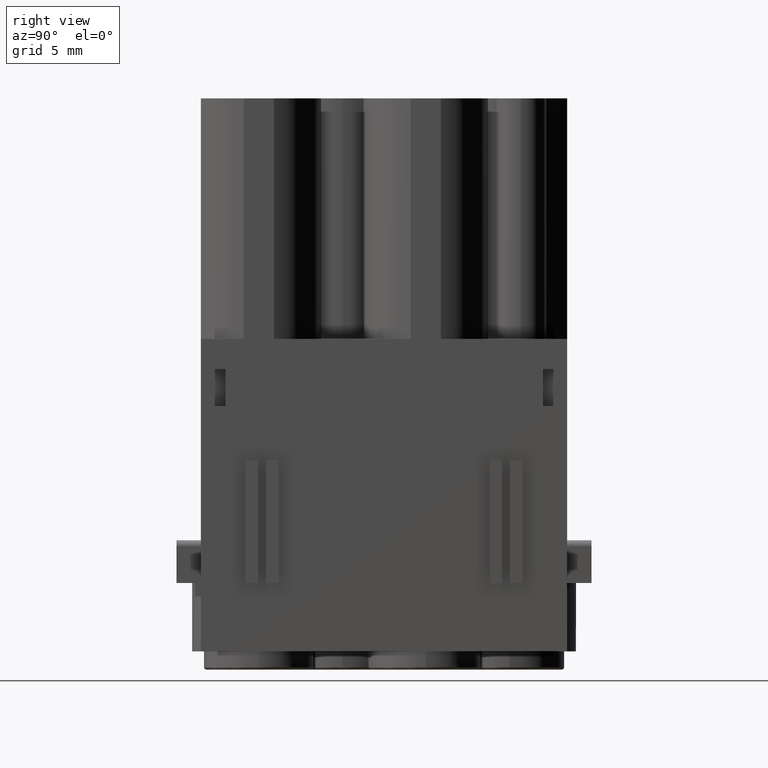
[diagram: clean part render]
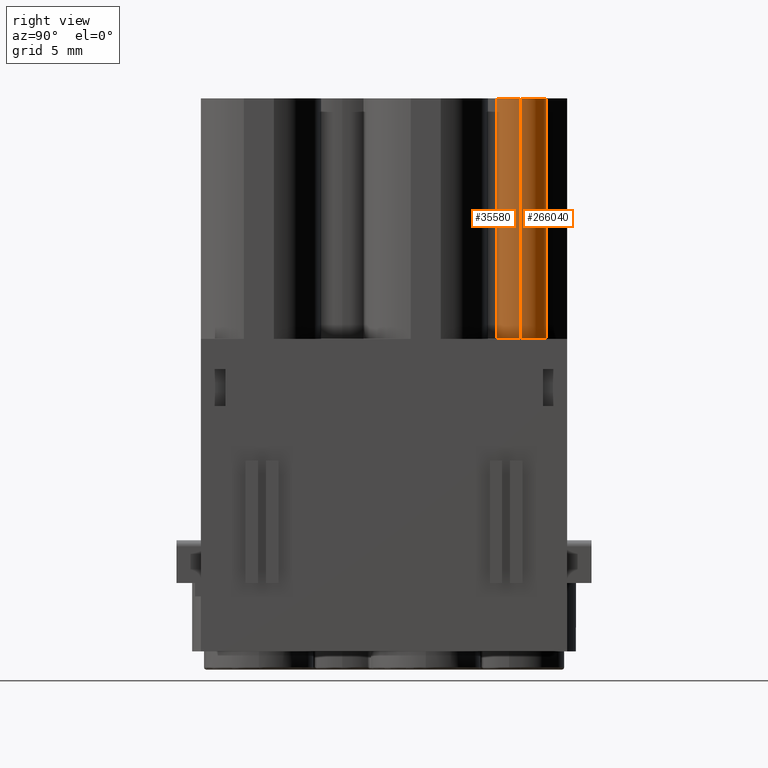
[diagram: same view with one multi-face feature highlighted, each face labeled with its STEP entity id]
A machine part, right view. The highlighted faces form ONE feature: a constant-radius fillet chain: 2 tangent blend faces with common blend radius 2.1 mm. The faces share edges in the B-rep.
Their STEP definitions:
[1] entity #266040 (Cylinder):
#35170=CARTESIAN_POINT('',(50.5934374313278,39.0571830000003,
-5.79766569867205));
#35180=DIRECTION('',(-4.24227485744583E-30,-1.,1.24773551709422E-14));
#35190=DIRECTION('',(1.,1.86986637132178E-30,4.89858719658941E-16));
#35200=AXIS2_PLACEMENT_3D('',#35170,#35180,#35190);
#35210=CYLINDRICAL_SURFACE('',#35200,2.1);
#35220=CARTESIAN_POINT('',(50.5934374313278,38.5571830000003,
-5.79766569867204));
#35230=DIRECTION('',(-4.24227485744583E-30,-1.,1.24773551709422E-14));
#35240=DIRECTION('',(1.,1.86986637132178E-30,4.89858719658941E-16));
#35250=AXIS2_PLACEMENT_3D('',#35220,#35230,#35240);
#35260=CIRCLE('',#35250,2.1);
#35290=CARTESIAN_POINT('',(52.6934374313278,38.5571830000003,
-5.79766569867204));
#35300=VERTEX_POINT('',#35290);
#35330=CARTESIAN_POINT('',(52.6934374313278,39.0571830000003,
-5.79766569867205));
#35340=DIRECTION('',(-4.24227485744583E-30,-1.,1.24773551709422E-14));
#35350=VECTOR('',#35340,1.);
#35360=LINE('',#35330,#35350);
#35370=CARTESIAN_POINT('',(52.6934374313278,58.2571830000003,
-5.79766569867229));
#35380=VERTEX_POINT('',#35370);
#35390=EDGE_CURVE('',#35380,#35300,#35360,.T.);
#35410=CARTESIAN_POINT('',(50.5934374313278,58.2571830000003,
-5.79766569867228));
#35420=DIRECTION('',(-4.24227485744583E-30,-1.,1.24773551709422E-14));
#35430=DIRECTION('',(1.,1.86986637132178E-30,4.89858719658941E-16));
#35440=AXIS2_PLACEMENT_3D('',#35410,#35420,#35430);
#35450=CIRCLE('',#35440,2.1);
#93650=CARTESIAN_POINT('',(50.3907773217341,38.5571830000003,
-3.70746741143241));
#93660=VERTEX_POINT('',#93650);
#93690=EDGE_CURVE('',#35300,#93660,#35260,.T.);
#99490=CARTESIAN_POINT('',(50.3907773217341,58.2571830000003,
-3.70746741143266));
#99500=VERTEX_POINT('',#99490);
#99530=CARTESIAN_POINT('',(50.3907773217341,39.0571830000003,
-3.70746741143242));
#99540=DIRECTION('',(4.24227485744583E-30,1.,-1.24773551709422E-14));
#99550=VECTOR('',#99540,1.);
#99560=LINE('',#99530,#99550);
#99570=EDGE_CURVE('',#93660,#99500,#99560,.T.);
#100400=EDGE_CURVE('',#35380,#99500,#35450,.T.);
#265980=ORIENTED_EDGE('',*,*,#93690,.F.);
#265990=ORIENTED_EDGE('',*,*,#99570,.F.);
#266000=ORIENTED_EDGE('',*,*,#100400,.T.);
#266010=ORIENTED_EDGE('',*,*,#35390,.F.);
#266020=EDGE_LOOP('',(#266010,#266000,#265990,#265980));
#266030=FACE_OUTER_BOUND('',#266020,.T.);
#266040=ADVANCED_FACE('',(#266030),#35210,.T.);
[2] entity #35580 (Cylinder):
#35170=CARTESIAN_POINT('',(50.5934374313278,39.0571830000003,
-5.79766569867205));
#35180=DIRECTION('',(-4.24227485744583E-30,-1.,1.24773551709422E-14));
#35190=DIRECTION('',(1.,1.86986637132178E-30,4.89858719658941E-16));
#35200=AXIS2_PLACEMENT_3D('',#35170,#35180,#35190);
#35210=CYLINDRICAL_SURFACE('',#35200,2.1);
#35220=CARTESIAN_POINT('',(50.5934374313278,38.5571830000003,
-5.79766569867204));
#35230=DIRECTION('',(-4.24227485744583E-30,-1.,1.24773551709422E-14));
#35240=DIRECTION('',(1.,1.86986637132178E-30,4.89858719658941E-16));
#35250=AXIS2_PLACEMENT_3D('',#35220,#35230,#35240);
#35260=CIRCLE('',#35250,2.1);
#35270=CARTESIAN_POINT('',(51.293120962728,38.5571830000002,
-7.77767654608864));
#35280=VERTEX_POINT('',#35270);
#35290=CARTESIAN_POINT('',(52.6934374313278,38.5571830000003,
-5.79766569867204));
#35300=VERTEX_POINT('',#35290);
#35310=EDGE_CURVE('',#35280,#35300,#35260,.T.);
#35320=ORIENTED_EDGE('',*,*,#35310,.F.);
#35330=CARTESIAN_POINT('',(52.6934374313278,39.0571830000003,
-5.79766569867205));
#35340=DIRECTION('',(-4.24227485744583E-30,-1.,1.24773551709422E-14));
#35350=VECTOR('',#35340,1.);
#35360=LINE('',#35330,#35350);
#35370=CARTESIAN_POINT('',(52.6934374313278,58.2571830000003,
-5.79766569867229));
#35380=VERTEX_POINT('',#35370);
#35390=EDGE_CURVE('',#35380,#35300,#35360,.T.);
#35400=ORIENTED_EDGE('',*,*,#35390,.T.);
#35410=CARTESIAN_POINT('',(50.5934374313278,58.2571830000003,
-5.79766569867228));
#35420=DIRECTION('',(-4.24227485744583E-30,-1.,1.24773551709422E-14));
#35430=DIRECTION('',(1.,1.86986637132178E-30,4.89858719658941E-16));
#35440=AXIS2_PLACEMENT_3D('',#35410,#35420,#35430);
#35450=CIRCLE('',#35440,2.1);
#35460=CARTESIAN_POINT('',(51.293120962728,58.2571830000002,
-7.77767654608889));
#35470=VERTEX_POINT('',#35460);
#35480=EDGE_CURVE('',#35470,#35380,#35450,.T.);
#35490=ORIENTED_EDGE('',*,*,#35480,.T.);
#35500=CARTESIAN_POINT('',(51.2931209627279,39.0571830000003,
-7.77767654608865));
#35510=DIRECTION('',(4.24227485744583E-30,1.,-1.24773551709422E-14));
#35520=VECTOR('',#35510,1.);
#35530=LINE('',#35500,#35520);
#35540=EDGE_CURVE('',#35280,#35470,#35530,.T.);
#35550=ORIENTED_EDGE('',*,*,#35540,.T.);
#35560=EDGE_LOOP('',(#35550,#35490,#35400,#35320));
#35570=FACE_OUTER_BOUND('',#35560,.T.);
#35580=ADVANCED_FACE('',(#35570),#35210,.T.);